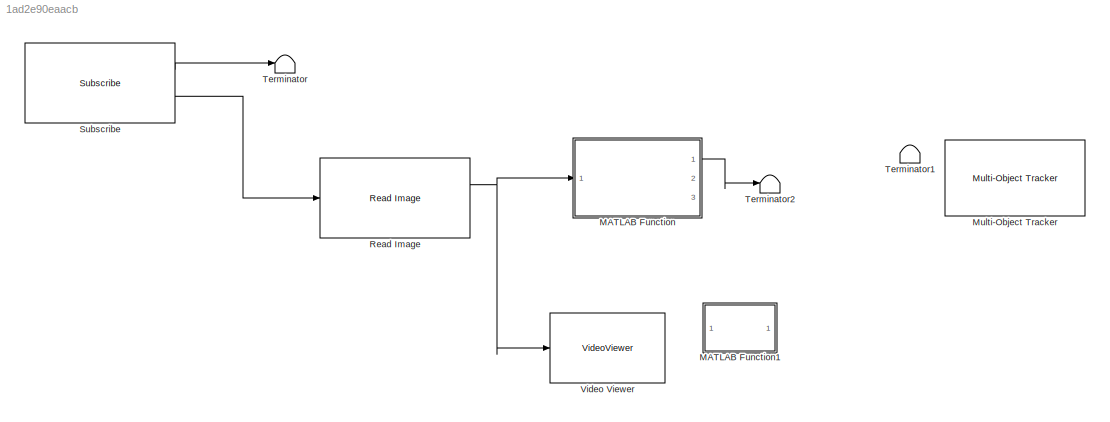
MODEL slx_1ad2e90eaacb
KIND model
CONFIG AbsTol = auto
CONFIG EnableMultiTasking = off
CONFIG FixedStep = auto
CONFIG MaxStep = auto
CONFIG MinStep = auto
CONFIG RelTol = 1e-3
CONFIG SampleTimeConstraint = Unconstrained
CONFIG Solver = VariableStepAuto
CONFIG SolverName = VariableStepAuto
CONFIG StartTime = 0.0
CONFIG StopTime = inf
WORKSPACE source: mxarray member
WORKSPACE SL_ROS_VariableLengthArrays_MaxSizes: object (value not decoded)
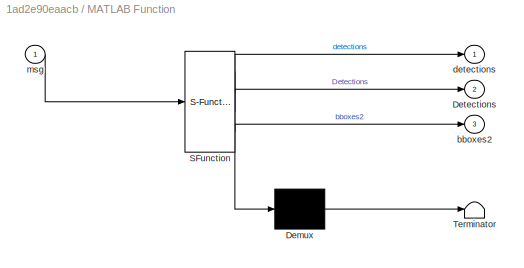
BLOCK [SubSystem] MATLAB Function
  ErrorFcn = Stateflow.Translate.translate
  PermitHierarchicalResolution = ExplicitOnly
  Ports = [1, 3]
  RequestExecContextInheritance = off
  SFBlockType = MATLAB Function
  TreatAsAtomicUnit = on
BLOCK [Demux] MATLAB Function/ Demux 
  Outputs = 1
  Ports = [1, 1]
BLOCK [S-Function] MATLAB Function/ SFunction 
  EnableBusSupport = on
  FunctionName = sf_sfun
  PortCounts = [1 4]
  Ports = [1, 4]
  SFcnIsStateOwnerBlock = off
  SFunctionDeploymentMode = off
  Tag = Stateflow S-Function 2
BLOCK [Terminator] MATLAB Function/ Terminator 
BLOCK [Outport] MATLAB Function/Detections
  Port = 2
BLOCK [Outport] MATLAB Function/bboxes2
  Port = 3
BLOCK [Outport] MATLAB Function/detections
BLOCK [Inport] MATLAB Function/msg
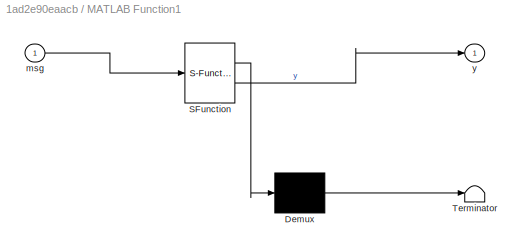
BLOCK [SubSystem] MATLAB Function1
  Commented = through
  ErrorFcn = Stateflow.Translate.translate
  PermitHierarchicalResolution = ExplicitOnly
  Ports = [1, 1]
  RequestExecContextInheritance = off
  SFBlockType = MATLAB Function
  TreatAsAtomicUnit = on
BLOCK [Demux] MATLAB Function1/ Demux 
  Outputs = 1
  Ports = [1, 1]
BLOCK [S-Function] MATLAB Function1/ SFunction 
  EnableBusSupport = on
  FunctionName = sf_sfun
  PortCounts = [1 2]
  Ports = [1, 2]
  SFcnIsStateOwnerBlock = off
  SFunctionDeploymentMode = off
  Tag = Stateflow S-Function 1
BLOCK [Terminator] MATLAB Function1/ Terminator 
BLOCK [Inport] MATLAB Function1/msg
BLOCK [Outport] MATLAB Function1/y
BLOCK [Reference] Multi-Object Tracker  REF=drivinglib/Multi-Object Tracker
  Commented = on
  Ports = [1, 1]
  SourceBlock = drivinglib/Multi-Object Tracker
  SourceProductBaseCode = DR
  SourceType = multiObjectTracker
BLOCK [Reference] Read Image  REF=robotlib/Read Image
  Ports = [1, 2]
  SourceBlock = robotlib/Read Image
  SourceProductBaseCode = RR
  SourceType = ros.slros.internal.block.ReadImage
BLOCK [Reference] Subscribe  REF=robotlib/Subscribe
  Ports = [0, 2]
  SourceBlock = robotlib/Subscribe
  SourceProductBaseCode = RR
  SourceType = ROS Subscribe
BLOCK [Terminator] Terminator
BLOCK [Terminator] Terminator1
BLOCK [Terminator] Terminator2
  Commented = on
BLOCK [VideoViewer] Video Viewer
  FigPos = [66 766 1301 661]
  Ports = [1]
  ScopeSpecificationString = vipscopes.VideoViewerScopeCfg('CurrentConfiguration', extmgr.ConfigurationSet(extmgr.Configuration('Core','General UI',true),extmgr.Configuration('Core','Source UI',true),extmgr.Configuration('Sources','WiredSimulink',true),extmgr.Configuration('Visuals','Video',true),extmgr.Configuration('Tools','Image Navigation Tools',true),extmgr.Configuration('Tools','Image Tool',true),extmgr.Configuration('T...<+73ch>
LINE MATLAB Function:1 -> Terminator2:1
NET Read Image:1 -> MATLAB Function:1, Video Viewer:1
LINE Subscribe:1 -> Terminator:1
LINE Subscribe:2 -> Read Image:1
note: NET lines group one-source signal fan-out (src -> all destinations, sorted); 1:1 wires keep LINE
CHART MATLAB Function1 states=1 transitions=1
  STATE_LABEL 'eML_blk_kernel()'
  STATE_LABEL "SCRIPT:\nfunction y   = MBfncSimu(msg)\ny=1;\nframe = msg;\npeopleDetector = vision.PeopleDetector('ClassificationModel','UprightPeople_128x64');\n\npersistent currentStep firstrun allTracks confirmedTracks tracker positionSelector detArray\n\nif isempty(currentStep)\n    currentStep = 0;\nend\n\ncurrentStep = currentStep + 1;\n[detections2,bboxes2,scores2] = detectObjects(peopleDetector, frame, currentStep);\n...<+3608ch>"
CHART MATLAB Function states=1 transitions=1
  STATE_LABEL 'eML_blk_kernel()'
  STATE_LABEL "SCRIPT:\nfunction [detections, Detections,bboxes2]  = peopleTracking(msg)\ny=1;\nframe = msg;\npeopleDetector = vision.PeopleDetector('ClassificationModel','UprightPeople_128x64');\n\npersistent currentStep firstrun allTracks confirmedTracks tracker positionSelector\n\nif isempty(currentStep)\n    currentStep = 0;\nend\n\ncurrentStep = currentStep + 1;\n[detections2,bboxes2,scores2] = detectObjects(peopleDetec...<+3608ch>"
CHART  states=0 transitions=0
CHART  states=0 transitions=0
